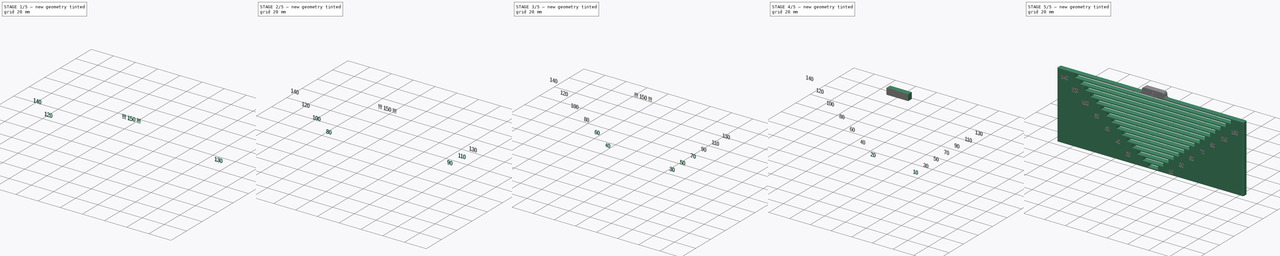
[diagram: build sequence overview — one tinted view per stage of 5, left to right]
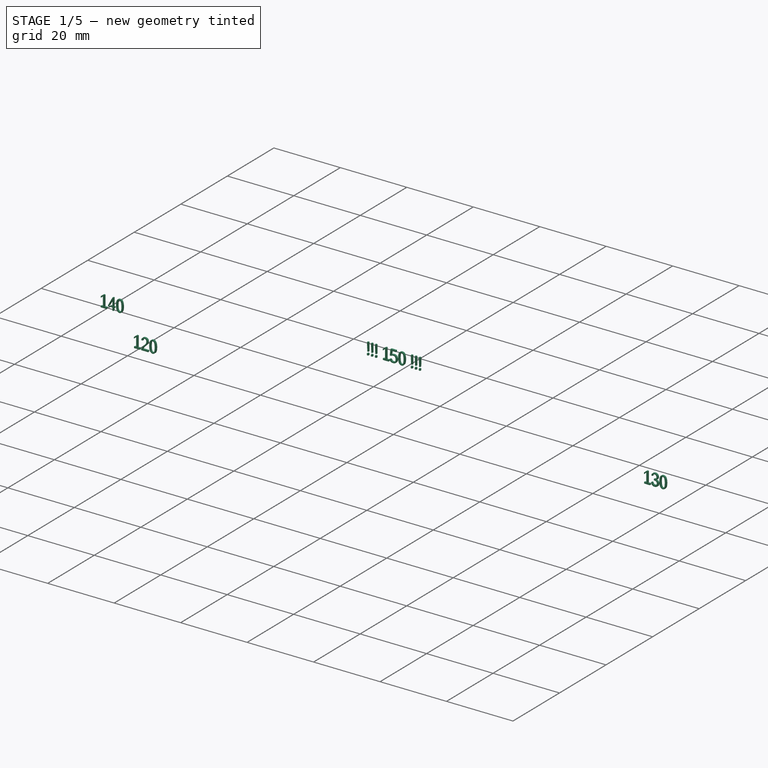
[diagram: stage 1 of 5 — iso view after this stage's code; geometry added in this stage tinted green]
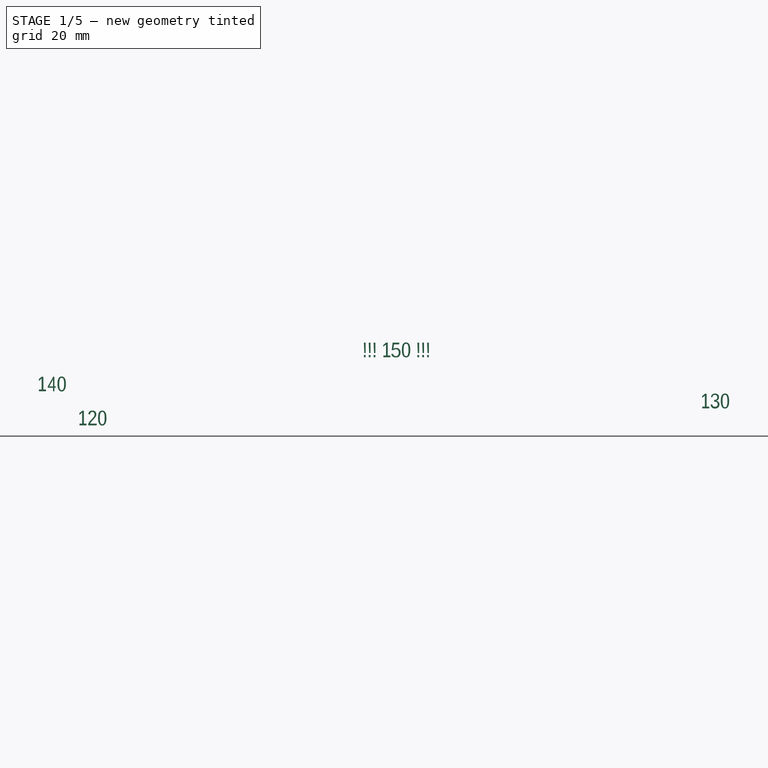
[diagram: stage 1 of 5 — front view after this stage's code; geometry added in this stage tinted green]
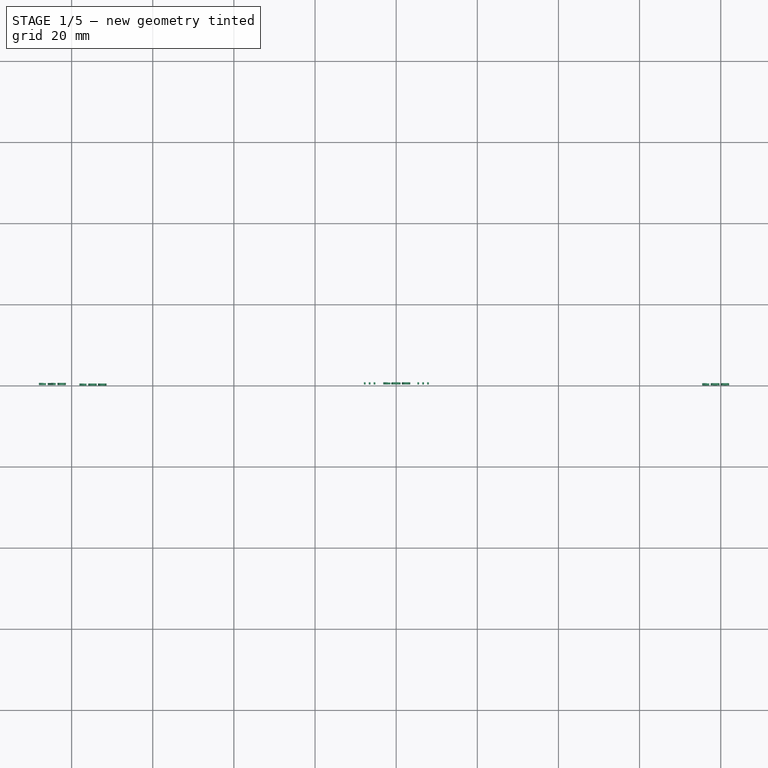
[diagram: stage 1 of 5 — top view after this stage's code; geometry added in this stage tinted green]
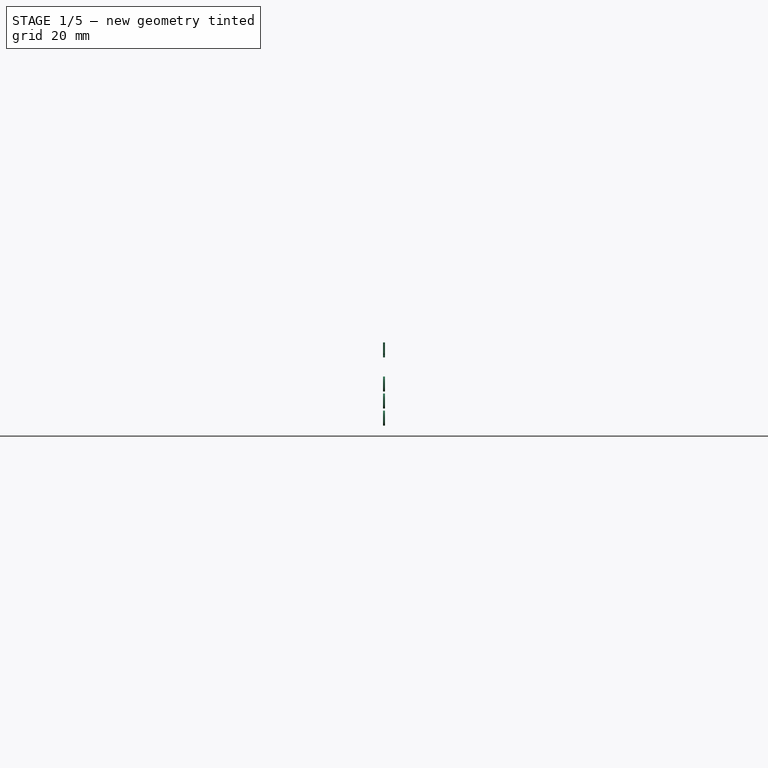
[diagram: stage 1 of 5 — right view after this stage's code; geometry added in this stage tinted green]
FCSTD DOCUMENT  (FreeCAD 0.16R4702 (Git))
Label: bridge
License: CreativeCommons Attribution
LicenseURL: http://creativecommons.org/licenses/by/4.0/
objects: Part::Part2DObjectPython×15, Part::Extrusion×15, Part::MultiFuse×2, Sketcher::SketchObject×1, PartDesign::Pad×1, Part::Box×1, Part::Cut×1, Part::Fillet×1
note: 38 computed .brp shape members not serialized (recipe doc carries the construction recipe); baked Part::Feature solids carry a one-line shape summary decoded from their .brp

FEATURE [Part::Extrusion] Extrude011
  Base = -> ShapeString011
  Dir = (0,0.5,0)
  Solid = true
FEATURE [Part::Extrusion] Extrude012
  Base = -> ShapeString012
  Dir = (0,0.5,0)
  Solid = true
FEATURE [Part::Extrusion] Extrude013
  Base = -> ShapeString013
  Dir = (0,0.5,0)
  Solid = true
FEATURE [Part::Extrusion] Extrude014
  Base = -> ShapeString014
  Dir = (0,0.5,0)
  Solid = true
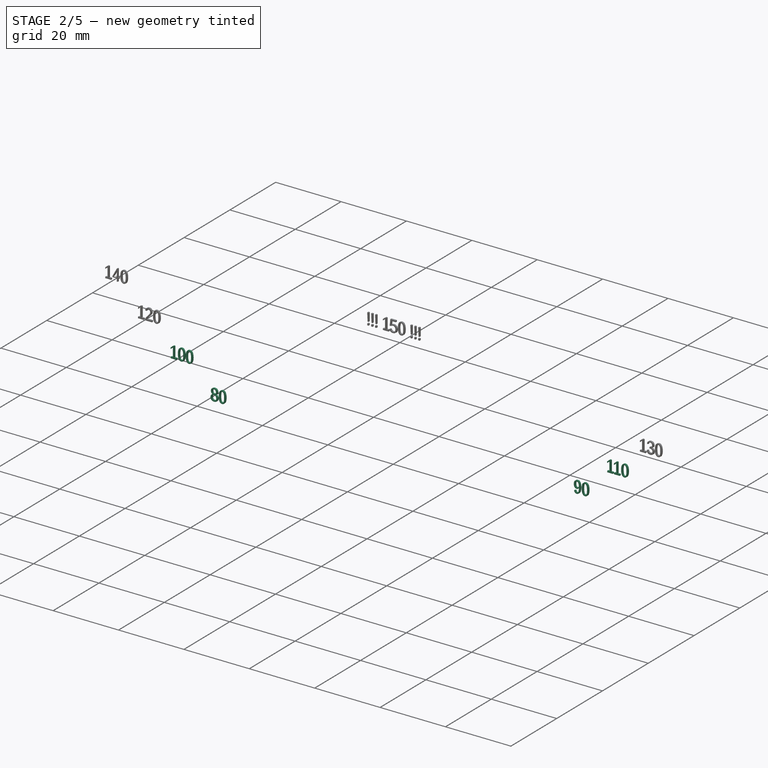
[diagram: stage 2 of 5 — iso view after this stage's code; geometry added in this stage tinted green]
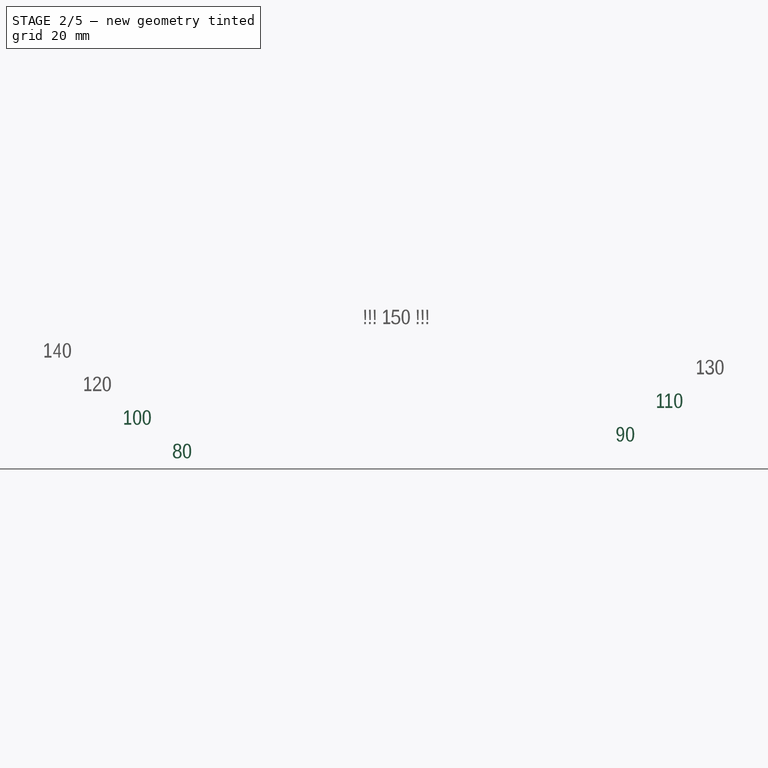
[diagram: stage 2 of 5 — front view after this stage's code; geometry added in this stage tinted green]
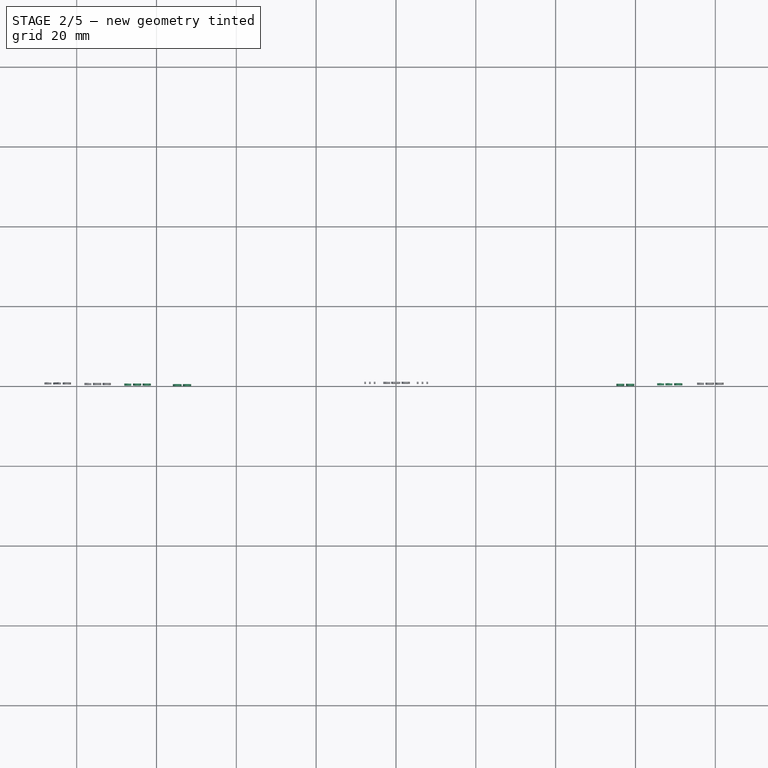
[diagram: stage 2 of 5 — top view after this stage's code; geometry added in this stage tinted green]
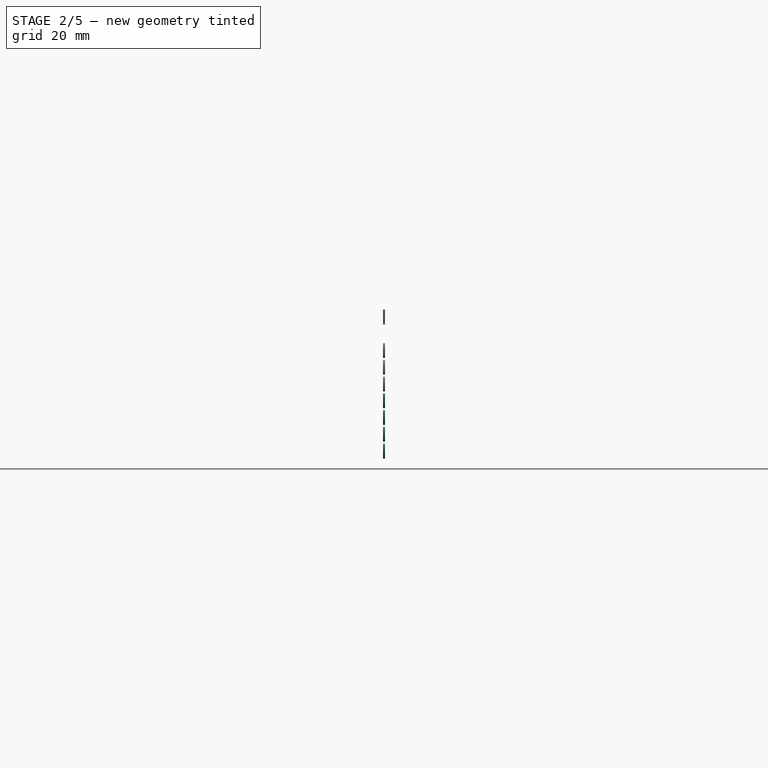
[diagram: stage 2 of 5 — right view after this stage's code; geometry added in this stage tinted green]
FEATURE [Part::Extrusion] Extrude007
  Base = -> ShapeString007
  Dir = (0,0.5,0)
  Solid = true
FEATURE [Part::Extrusion] Extrude008
  Base = -> ShapeString008
  Dir = (0,0.5,0)
  Solid = true
FEATURE [Part::Extrusion] Extrude009
  Base = -> ShapeString009
  Dir = (0,0.5,0)
  Solid = true
FEATURE [Part::Extrusion] Extrude010
  Base = -> ShapeString010
  Dir = (0,0.5,0)
  Solid = true
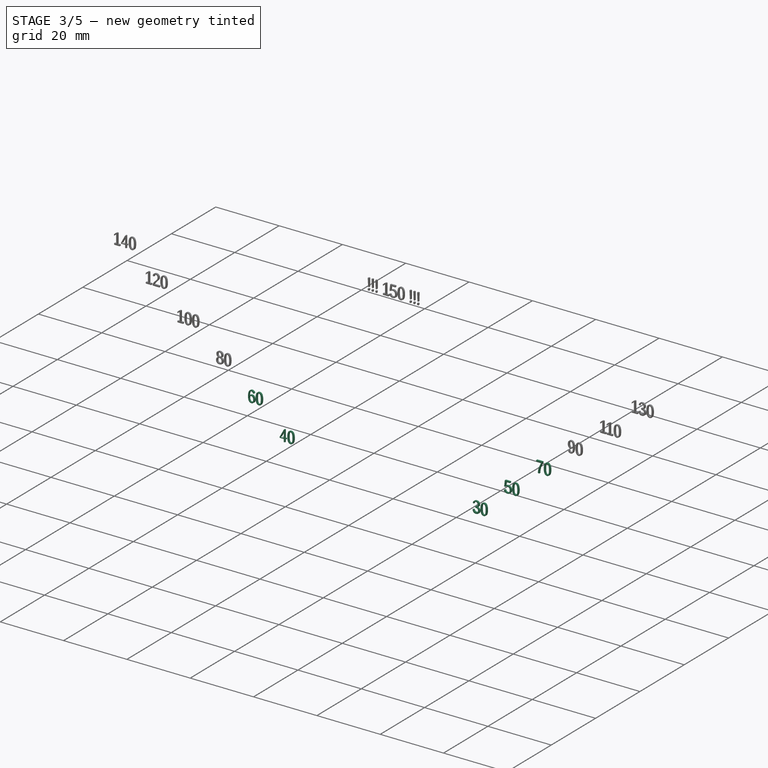
[diagram: stage 3 of 5 — iso view after this stage's code; geometry added in this stage tinted green]
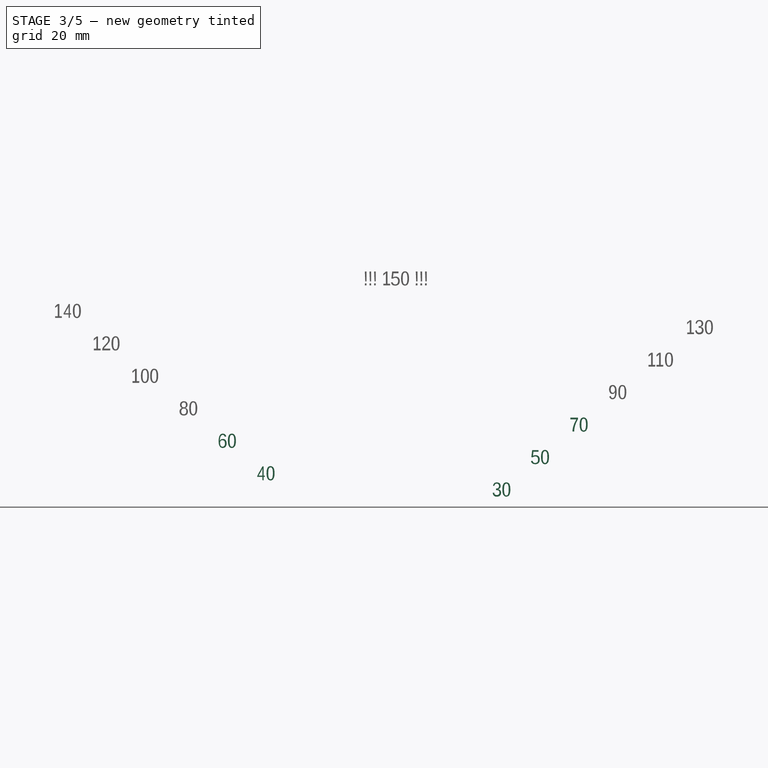
[diagram: stage 3 of 5 — front view after this stage's code; geometry added in this stage tinted green]
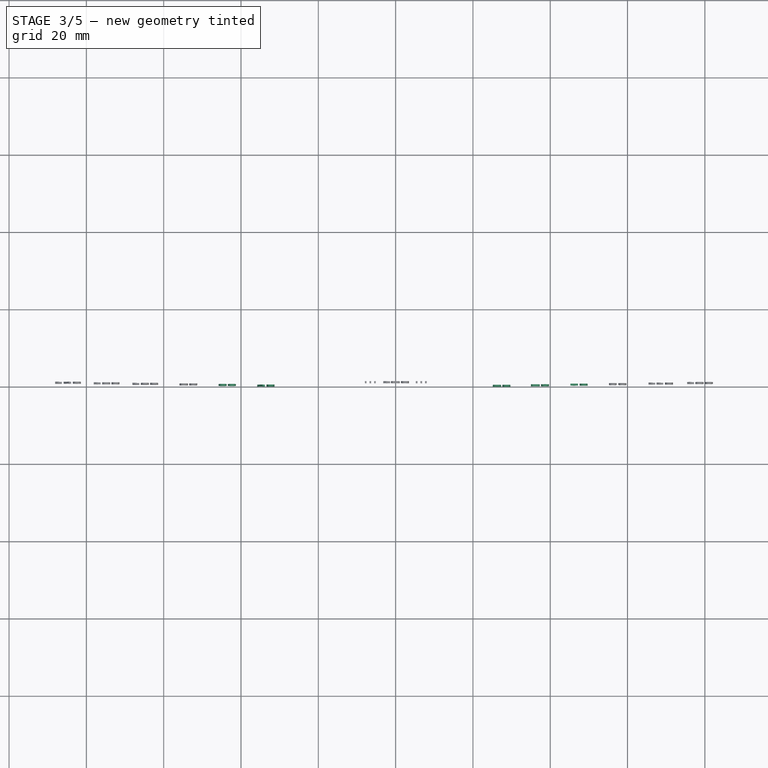
[diagram: stage 3 of 5 — top view after this stage's code; geometry added in this stage tinted green]
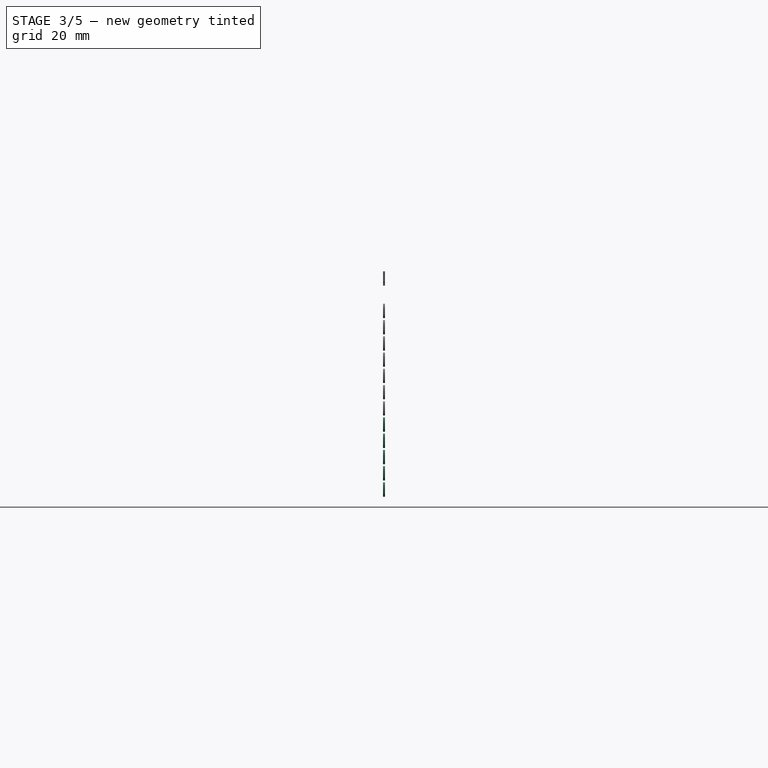
[diagram: stage 3 of 5 — right view after this stage's code; geometry added in this stage tinted green]
FEATURE [Part::Extrusion] Extrude002
  Base = -> ShapeString002
  Dir = (0,0.5,0)
  Solid = true
FEATURE [Part::Extrusion] Extrude003
  Base = -> ShapeString003
  Dir = (0,0.5,0)
  Solid = true
FEATURE [Part::Extrusion] Extrude004
  Base = -> ShapeString004
  Dir = (0,0.5,0)
  Solid = true
FEATURE [Part::Extrusion] Extrude005
  Base = -> ShapeString005
  Dir = (0,0.5,0)
  Solid = true
FEATURE [Part::Extrusion] Extrude006
  Base = -> ShapeString006
  Dir = (0,0.5,0)
  Solid = true
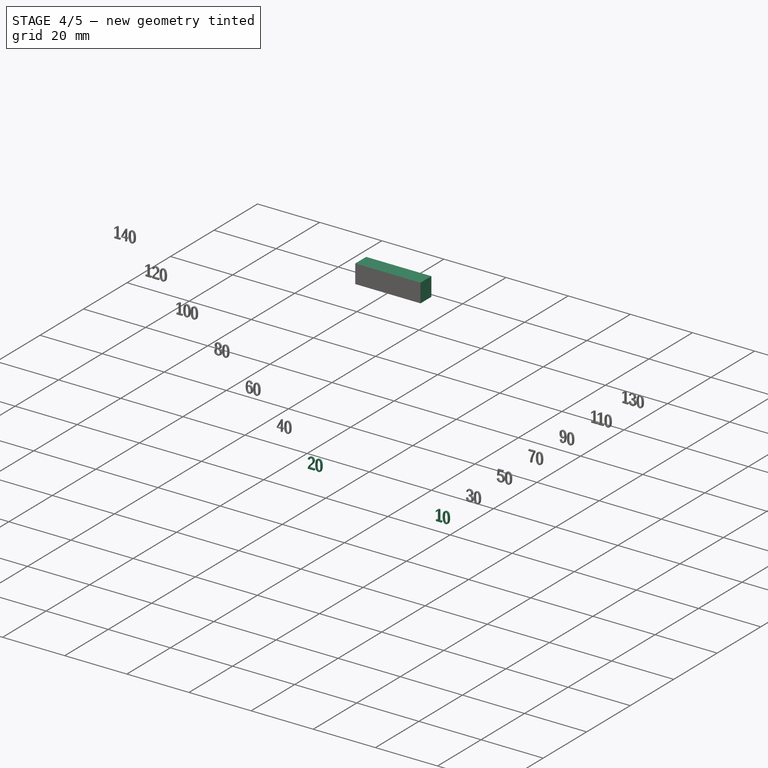
[diagram: stage 4 of 5 — iso view after this stage's code; geometry added in this stage tinted green]
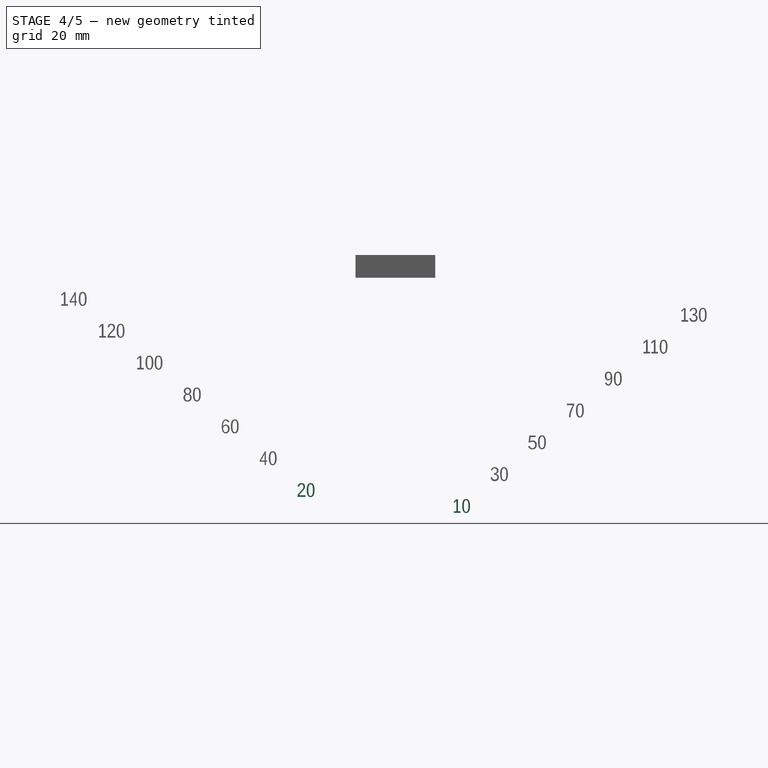
[diagram: stage 4 of 5 — front view after this stage's code; geometry added in this stage tinted green]
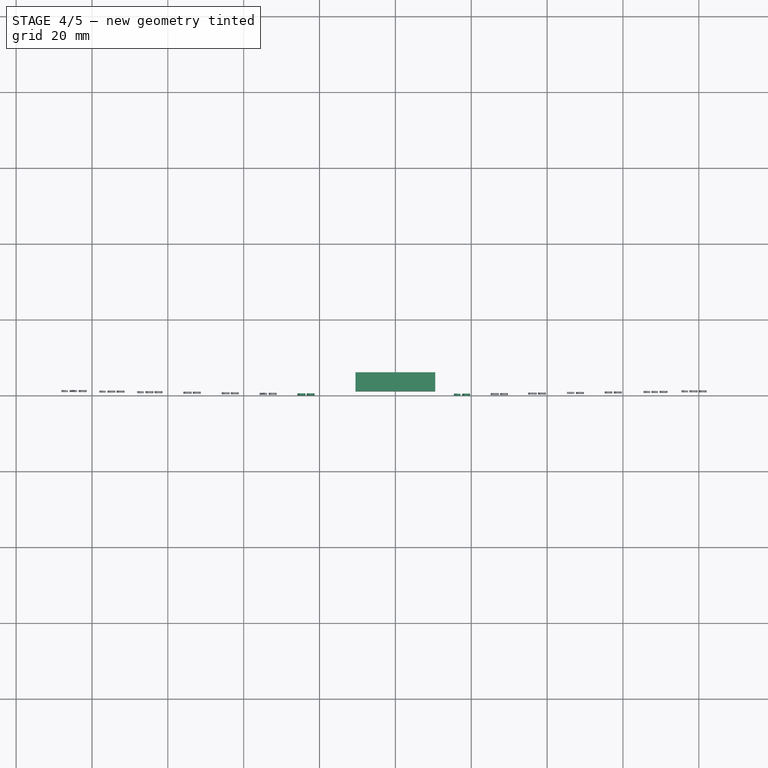
[diagram: stage 4 of 5 — top view after this stage's code; geometry added in this stage tinted green]
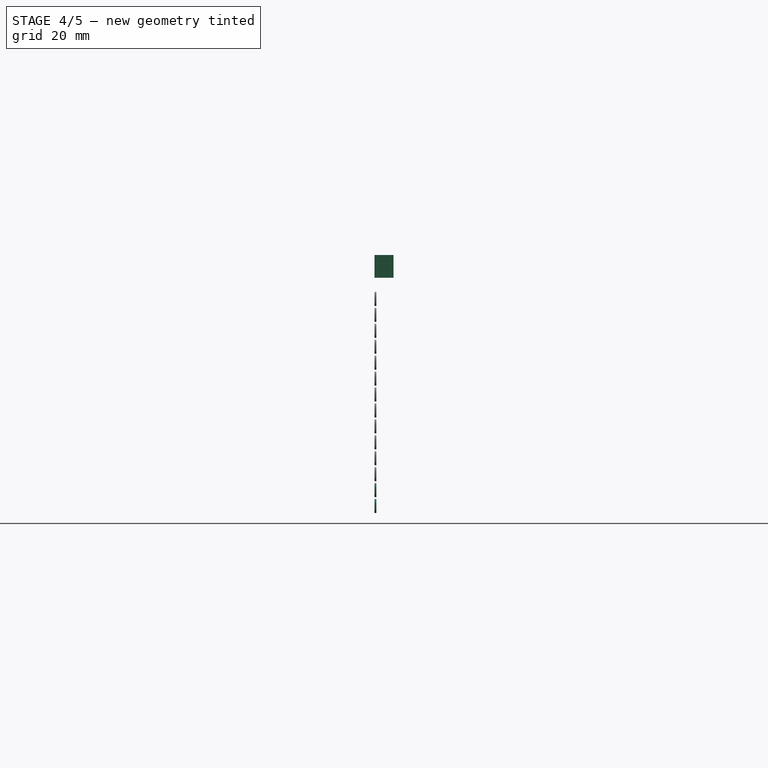
[diagram: stage 4 of 5 — right view after this stage's code; geometry added in this stage tinted green]
FEATURE [Part::Part2DObjectPython] ShapeString  label="ShapeString - 10"  # Draft 2D object (typed FeaturePython)
  FontFile = <userpath>/Desktop/fonts/LiberationSansNarrow-Regular.ttf
  Placement = pos=(15,0,1) rot=(1,0,0;1.5708rad)
  Size = 4
  String = 10
  Tracking = 0
FEATURE [Part::Part2DObjectPython] ShapeString001  label="ShapeString - 20"  # Draft 2D object (typed FeaturePython)
  FontFile = <userpath>/Desktop/fonts/LiberationSansNarrow-Regular.ttf
  Placement = pos=(-26,0,5.2) rot=(1,0,0;1.5708rad)
  Size = 4
  String = 20
  Tracking = 0
FEATURE [Part::Part2DObjectPython] ShapeString002  label="ShapeString - 30"  # Draft 2D object (typed FeaturePython)
  FontFile = <userpath>/Desktop/fonts/LiberationSansNarrow-Regular.ttf
  Placement = pos=(25,0,9.4) rot=(1,0,0;1.5708rad)
  Size = 4
  String = 30
  Tracking = 0
FEATURE [Part::Part2DObjectPython] ShapeString003  label="ShapeString - 40"  # Draft 2D object (typed FeaturePython)
  FontFile = <userpath>/Desktop/fonts/LiberationSansNarrow-Regular.ttf
  Placement = pos=(-36,0,13.6) rot=(1,0,0;1.5708rad)
  Size = 4
  String = 40
  Tracking = 0
FEATURE [Part::Part2DObjectPython] ShapeString004  label="ShapeString - 50"  # Draft 2D object (typed FeaturePython)
  FontFile = <userpath>/Desktop/fonts/LiberationSansNarrow-Regular.ttf
  Placement = pos=(35,0,17.8) rot=(1,0,0;1.5708rad)
  Size = 4
  String = 50
  Tracking = 0
FEATURE [Part::Part2DObjectPython] ShapeString005  label="ShapeString - 60"  # Draft 2D object (typed FeaturePython)
  FontFile = <userpath>/Desktop/fonts/LiberationSansNarrow-Regular.ttf
  Placement = pos=(-46,0,22) rot=(1,0,0;1.5708rad)
  Size = 4
  String = 60
  Tracking = 0
FEATURE [Part::Part2DObjectPython] ShapeString006  label="ShapeString - 70"  # Draft 2D object (typed FeaturePython)
  FontFile = <userpath>/Desktop/fonts/LiberationSansNarrow-Regular.ttf
  Placement = pos=(45,0,26.2) rot=(1,0,0;1.5708rad)
  Size = 4
  String = 70
  Tracking = 0
FEATURE [Part::Part2DObjectPython] ShapeString007  label="ShapeString - 80"  # Draft 2D object (typed FeaturePython)
  FontFile = <userpath>/Desktop/fonts/LiberationSansNarrow-Regular.ttf
  Placement = pos=(-56,0,30.4) rot=(1,0,0;1.5708rad)
  Size = 4
  String = 80
  Tracking = 0
FEATURE [Part::Part2DObjectPython] ShapeString008  label="ShapeString - 90"  # Draft 2D object (typed FeaturePython)
  FontFile = <userpath>/Desktop/fonts/LiberationSansNarrow-Regular.ttf
  Placement = pos=(55,0,34.6) rot=(1,0,0;1.5708rad)
  Size = 4
  String = 90
  Tracking = 0
FEATURE [Part::Part2DObjectPython] ShapeString009  label="ShapeString - 100"  # Draft 2D object (typed FeaturePython)
  FontFile = <userpath>/Desktop/fonts/LiberationSansNarrow-Regular.ttf
  Placement = pos=(-68.5,0,38.8) rot=(1,0,0;1.5708rad)
  Size = 4
  String = 100
  Tracking = 0
FEATURE [Part::Part2DObjectPython] ShapeString010  label="ShapeString - 110"  # Draft 2D object (typed FeaturePython)
  FontFile = <userpath>/Desktop/fonts/LiberationSansNarrow-Regular.ttf
  Placement = pos=(65,0,43) rot=(1,0,0;1.5708rad)
  Size = 4
  String = 110
  Tracking = 0
FEATURE [Part::Part2DObjectPython] ShapeString011  label="ShapeString - 120"  # Draft 2D object (typed FeaturePython)
  FontFile = <userpath>/Desktop/fonts/LiberationSansNarrow-Regular.ttf
  Placement = pos=(-78.5,0,47.2) rot=(1,0,0;1.5708rad)
  Size = 4
  String = 120
  Tracking = 0
FEATURE [Part::Part2DObjectPython] ShapeString012  label="ShapeString - 130"  # Draft 2D object (typed FeaturePython)
  FontFile = <userpath>/Desktop/fonts/LiberationSansNarrow-Regular.ttf
  Placement = pos=(75,0,51.4) rot=(1,0,0;1.5708rad)
  Size = 4
  String = 130
  Tracking = 0
FEATURE [Part::Part2DObjectPython] ShapeString013  label="ShapeString - 140"  # Draft 2D object (typed FeaturePython)
  FontFile = <userpath>/Desktop/fonts/LiberationSansNarrow-Regular.ttf
  Placement = pos=(-88.5,0,55.6) rot=(1,0,0;1.5708rad)
  Size = 4
  String = 140
  Tracking = 0
FEATURE [Part::Part2DObjectPython] ShapeString014  label="ShapeString - 150"  # Draft 2D object (typed FeaturePython)
  FontFile = <userpath>/Desktop/fonts/LiberationSansNarrow-Regular.ttf
  Placement = pos=(-8.4,0,64) rot=(1,0,0;1.5708rad)
  Size = 4
  String = !!! 150 !!!
  Tracking = 0
FEATURE [Part::Extrusion] Extrude
  Base = -> ShapeString
  Dir = (0,0.5,0)
  Solid = true
FEATURE [Part::Extrusion] Extrude001
  Base = -> ShapeString001
  Dir = (0,0.5,0)
  Solid = true
FEATURE [Part::Box] Box  label="Cube"
  Height = 6
  Length = 21
  Placement = pos=(-10.5,0,63) rot=(0,0,1;0rad)
  Width = 5
FEATURE [Part::MultiFuse] Fusion001
  Shapes = -> [Extrude014,Extrude009,Extrude007,Extrude008,Extrude010,Extrude011,Extrude012,Extrude013,Extrude001,Extrude002,Extrude003,Extrude,Extrude005,Extrude004,Extrude006]
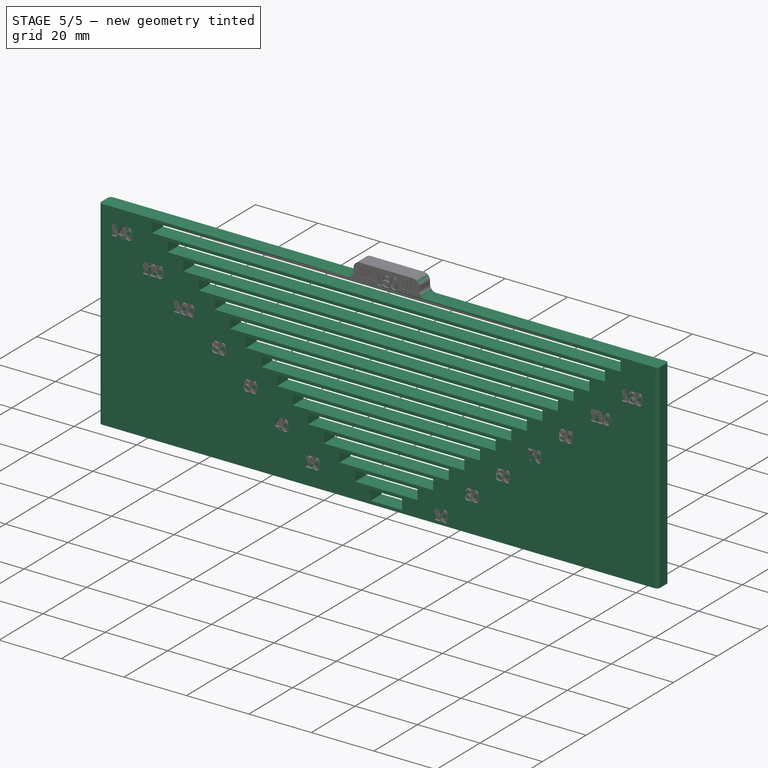
[diagram: stage 5 of 5 — iso view after this stage's code; geometry added in this stage tinted green]
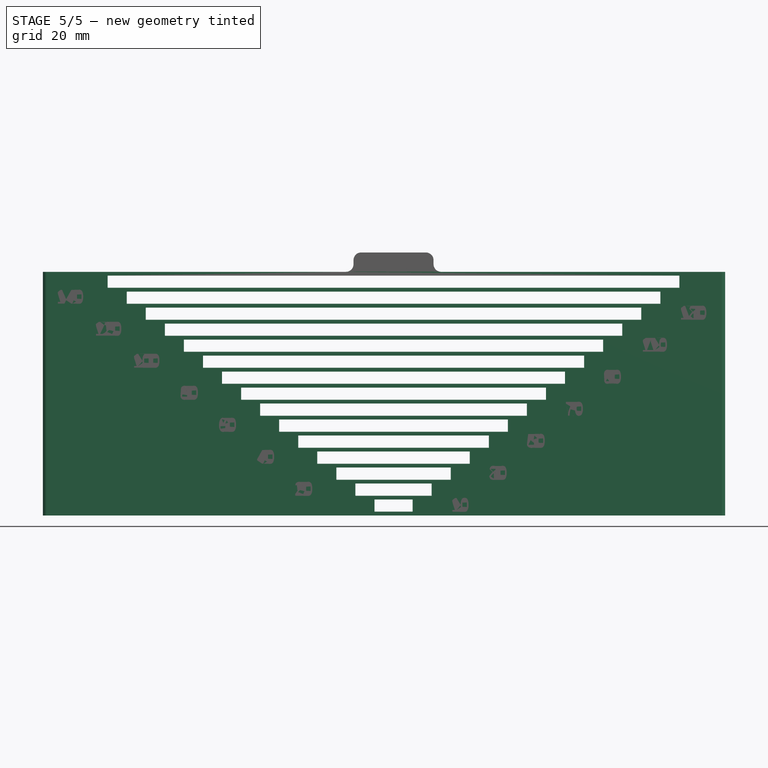
[diagram: stage 5 of 5 — front view after this stage's code; geometry added in this stage tinted green]
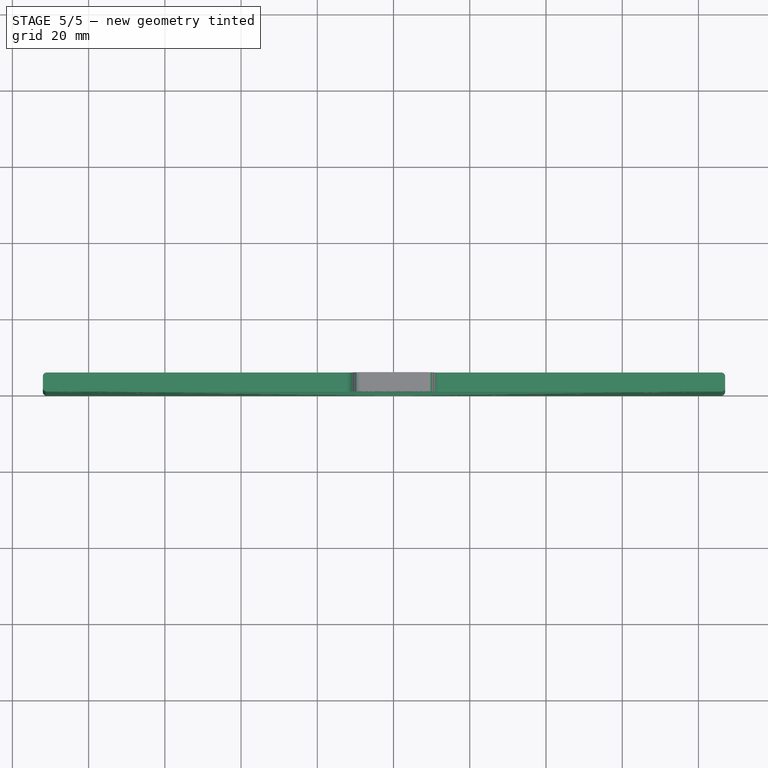
[diagram: stage 5 of 5 — top view after this stage's code; geometry added in this stage tinted green]
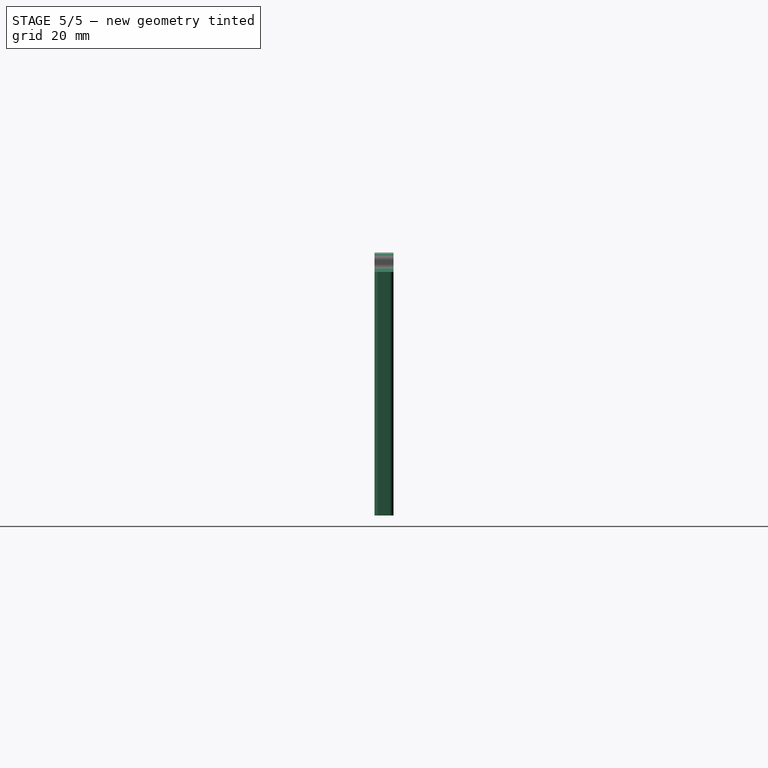
[diagram: stage 5 of 5 — right view after this stage's code; geometry added in this stage tinted green]
FEATURE [Sketcher::SketchObject] Sketch
  Placement = pos=(0,0,0) rot=(-1,0,0;4.71239rad)
  sketch-geometry (66):
    g0: LineSegment [constr] StartX=0 StartY=0 StartZ=0 EndX=-75 EndY=62.9325 EndZ=0
    g1: LineSegment [constr] StartX=0 StartY=0 StartZ=0 EndX=75 EndY=62.9325 EndZ=0
    g2: LineSegment StartX=-75 StartY=62.9325 StartZ=0 EndX=75 EndY=62.9325 EndZ=0
    g3: LineSegment StartX=-10 StartY=8.391 StartZ=0 EndX=10 EndY=8.391 EndZ=0
    g4: LineSegment StartX=-15 StartY=12.5865 StartZ=0 EndX=15 EndY=12.5865 EndZ=0
    g5: LineSegment StartX=-20 StartY=16.782 StartZ=0 EndX=20 EndY=16.782 EndZ=0
    g6: LineSegment StartX=-25 StartY=20.9775 StartZ=0 EndX=25 EndY=20.9775 EndZ=0
    g7: LineSegment StartX=-30 StartY=25.173 StartZ=0 EndX=30 EndY=25.173 EndZ=0
    g8: LineSegment StartX=-35 StartY=29.3685 StartZ=0 EndX=35 EndY=29.3685 EndZ=0
    g9: LineSegment StartX=-40 StartY=33.564 StartZ=0 EndX=40 EndY=33.564 EndZ=0
    g10: LineSegment StartX=-45 StartY=37.7595 StartZ=0 EndX=45 EndY=37.7595 EndZ=0
    g11: LineSegment StartX=-50 StartY=41.955 StartZ=0 EndX=50 EndY=41.955 EndZ=0
    g12: LineSegment StartX=-55 StartY=46.1505 StartZ=0 EndX=55 EndY=46.1505 EndZ=0
    g13: LineSegment StartX=-65 StartY=54.5415 StartZ=0 EndX=65 EndY=54.5415 EndZ=0
    g14: LineSegment StartX=-60 StartY=50.346 StartZ=0 EndX=60 EndY=50.346 EndZ=0
    g15: LineSegment StartX=-70 StartY=58.737 StartZ=0 EndX=70 EndY=58.737 EndZ=0
    g16: LineSegment StartX=-10 StartY=8.391 StartZ=0 EndX=-10 EndY=5.1955 EndZ=0
    g17: LineSegment StartX=-10 StartY=5.1955 StartZ=0 EndX=10 EndY=5.1955 EndZ=0
    g18: LineSegment StartX=10 StartY=5.1955 StartZ=0 EndX=10 EndY=8.391 EndZ=0
    g19: LineSegment StartX=-15 StartY=12.5865 StartZ=0 EndX=-15 EndY=9.391 EndZ=0
    g20: LineSegment StartX=-15 StartY=9.391 StartZ=0 EndX=15 EndY=9.391 EndZ=0
    g21: LineSegment StartX=15 StartY=9.391 StartZ=0 EndX=15 EndY=12.5865 EndZ=0
    g22: LineSegment StartX=-20 StartY=16.782 StartZ=0 EndX=-20 EndY=13.5865 EndZ=0
    g23: LineSegment StartX=-20 StartY=13.5865 StartZ=0 EndX=20 EndY=13.5865 EndZ=0
    g24: LineSegment StartX=20 StartY=13.5865 StartZ=0 EndX=20 EndY=16.782 EndZ=0
    g25: LineSegment StartX=-25 StartY=20.9775 StartZ=0 EndX=-25 EndY=17.782 EndZ=0
    g26: LineSegment StartX=-25 StartY=17.782 StartZ=0 EndX=25 EndY=17.782 EndZ=0
    g27: LineSegment StartX=25 StartY=17.782 StartZ=0 EndX=25 EndY=20.9775 EndZ=0
    g28: LineSegment StartX=-30 StartY=25.173 StartZ=0 EndX=-30 EndY=21.9775 EndZ=0
    g29: LineSegment StartX=-30 StartY=21.9775 StartZ=0 EndX=30 EndY=21.9775 EndZ=0
    g30: LineSegment StartX=30 StartY=21.9775 StartZ=0 EndX=30 EndY=25.173 EndZ=0
    g31: LineSegment StartX=-35 StartY=29.3685 StartZ=0 EndX=-35 EndY=26.173 EndZ=0
    g32: LineSegment StartX=-35 StartY=26.173 StartZ=0 EndX=35 EndY=26.173 EndZ=0
    g33: LineSegment StartX=35 StartY=26.173 StartZ=0 EndX=35 EndY=29.3685 EndZ=0
    g34: LineSegment StartX=-40 StartY=33.564 StartZ=0 EndX=-40 EndY=30.3685 EndZ=0
    g35: LineSegment StartX=-40 StartY=30.3685 StartZ=0 EndX=40 EndY=30.3685 EndZ=0
    g36: LineSegment StartX=40 StartY=30.3685 StartZ=0 EndX=40 EndY=33.564 EndZ=0
    g37: LineSegment StartX=-45 StartY=37.7595 StartZ=0 EndX=-45 EndY=34.564 EndZ=0
    g38: LineSegment StartX=-45 StartY=34.564 StartZ=0 EndX=45 EndY=34.564 EndZ=0
    g39: LineSegment StartX=45 StartY=34.564 StartZ=0 EndX=45 EndY=37.7595 EndZ=0
    g40: LineSegment StartX=-50 StartY=41.955 StartZ=0 EndX=-50 EndY=38.7595 EndZ=0
    g41: LineSegment StartX=-50 StartY=38.7595 StartZ=0 EndX=50 EndY=38.7595 EndZ=0
    g42: LineSegment StartX=50 StartY=38.7595 StartZ=0 EndX=50 EndY=41.955 EndZ=0
    g43: LineSegment StartX=-55 StartY=46.1505 StartZ=0 EndX=-55 EndY=42.955 EndZ=0
    g44: LineSegment StartX=-55 StartY=42.955 StartZ=0 EndX=55 EndY=42.955 EndZ=0
    g45: LineSegment StartX=55 StartY=42.955 StartZ=0 EndX=55 EndY=46.1505 EndZ=0
    g46: LineSegment StartX=-60 StartY=50.346 StartZ=0 EndX=-60 EndY=47.1505 EndZ=0
    g47: LineSegment StartX=-60 StartY=47.1505 StartZ=0 EndX=60 EndY=47.1505 EndZ=0
    g48: LineSegment StartX=60 StartY=47.1505 StartZ=0 EndX=60 EndY=50.346 EndZ=0
    g49: LineSegment StartX=-65 StartY=54.5415 StartZ=0 EndX=-65 EndY=51.346 EndZ=0
    g50: LineSegment StartX=-65 StartY=51.346 StartZ=0 EndX=65 EndY=51.346 EndZ=0
    g51: LineSegment StartX=65 StartY=51.346 StartZ=0 EndX=65 EndY=54.5415 EndZ=0
    g52: LineSegment StartX=-70 StartY=58.737 StartZ=0 EndX=-70 EndY=55.5415 EndZ=0
    g53: LineSegment StartX=-70 StartY=55.5415 StartZ=0 EndX=70 EndY=55.5415 EndZ=0
    g54: LineSegment StartX=70 StartY=55.5415 StartZ=0 EndX=70 EndY=58.737 EndZ=0
    g55: LineSegment StartX=-75 StartY=62.9325 StartZ=0 EndX=-75 EndY=59.737 EndZ=0
    g56: LineSegment StartX=-75 StartY=59.737 StartZ=0 EndX=75 EndY=59.737 EndZ=0
    g57: LineSegment StartX=75 StartY=59.737 StartZ=0 EndX=75 EndY=62.9325 EndZ=0
    g58: LineSegment StartX=-5 StartY=4.1955 StartZ=0 EndX=5 EndY=4.1955 EndZ=0
    g59: LineSegment StartX=-5 StartY=4.1955 StartZ=0 EndX=-5 EndY=1 EndZ=0
    g60: LineSegment StartX=-5 StartY=1 StartZ=0 EndX=5 EndY=1 EndZ=0
    g61: LineSegment StartX=5 StartY=1 StartZ=0 EndX=5 EndY=4.1955 EndZ=0
    g62: LineSegment StartX=-92 StartY=63.9325 StartZ=0 EndX=87 EndY=63.9325 EndZ=0
    g63: LineSegment StartX=87 StartY=63.9325 StartZ=0 EndX=87 EndY=0 EndZ=0
    g64: LineSegment StartX=87 StartY=0 StartZ=0 EndX=-92 EndY=0 EndZ=0
    g65: LineSegment StartX=-92 StartY=0 StartZ=0 EndX=-92 EndY=63.9325 EndZ=0
  constraints (196):
    c: Coincident(g-1,g0)
    c: Coincident(g1,g-1)
    c: Coincident(g2,g0)
    c: Coincident(g2,g1)
    c: Horizontal(g2)
    c: PointOnObject(g3,g0)
    c: PointOnObject(g3,g1)
    c: Horizontal(g3)
    c: PointOnObject(g4,g0)
    c: PointOnObject(g4,g1)
    c: Horizontal(g4)
    c: PointOnObject(g5,g0)
    c: Horizontal(g5)
    c: PointOnObject(g6,g0)
    c: PointOnObject(g6,g1)
    c: Horizontal(g6)
    c: PointOnObject(g5,g1)
    c: PointOnObject(g7,g0)
    c: PointOnObject(g7,g1)
    c: Horizontal(g7)
    c: PointOnObject(g8,g0)
    c: PointOnObject(g8,g1)
    c: Horizontal(g8)
    c: PointOnObject(g9,g0)
    c: PointOnObject(g9,g1)
    c: Horizontal(g9)
    c: PointOnObject(g10,g0)
    c: PointOnObject(g10,g1)
    c: Horizontal(g10)
    c: DistanceX(g3) = 20
    c: DistanceX(g4) = 30
    c: DistanceX(g5) = 40
    c: DistanceX(g6) = 50
    c: DistanceX(g7) = 60
    c: DistanceX(g8) = 70
    c: DistanceX(g9) = 80
    c: DistanceX(g10) = 90
    c: PointOnObject(g11,g0)
    c: Horizontal(g11)
    c: PointOnObject(g11,g1)
    c: PointOnObject(g12,g0)
    c: PointOnObject(g12,g1)
    c: Horizontal(g12)
    c: PointOnObject(g13,g0)
    c: PointOnObject(g13,g1)
    c: Horizontal(g13)
    c: PointOnObject(g14,g0)
    c: PointOnObject(g14,g1)
    c: Horizontal(g14)
    c: DistanceX(g11) = 100
    c: DistanceX(g12) = 110
    c: DistanceX(g14) = 120
    c: DistanceX(g13) = 130
    c: DistanceX(g2) = 150
    c: PointOnObject(g15,g0)
    c: PointOnObject(g15,g1)
    c: Horizontal(g15)
    c: DistanceX(g15) = 140
    c: Coincident(g3,g16)
    c: Vertical(g16)
    c: Coincident(g16,g17)
    c: Horizontal(g17)
    c: Coincident(g17,g18)
    c: Coincident(g18,g3)
    c: Vertical(g18)
    c: Coincident(g4,g19)
    c: Vertical(g19)
    c: Coincident(g19,g20)
    c: Horizontal(g20)
    c: Coincident(g20,g21)
    c: Coincident(g21,g4)
    c: Vertical(g21)
    c: Coincident(g5,g22)
    c: Vertical(g22)
    c: Coincident(g22,g23)
    c: Horizontal(g23)
    c: Coincident(g23,g24)
    c: Coincident(g24,g5)
    c: Vertical(g24)
    c: Coincident(g6,g25)
    c: Vertical(g25)
    c: Coincident(g25,g26)
    c: Horizontal(g26)
    c: Coincident(g26,g27)
    c: Coincident(g27,g6)
    c: Vertical(g27)
    c: Coincident(g7,g28)
    c: Vertical(g28)
    c: Coincident(g28,g29)
    c: Horizontal(g29)
    c: Coincident(g29,g30)
    c: Coincident(g30,g7)
    c: Vertical(g30)
    c: Coincident(g8,g31)
    c: Vertical(g31)
    c: Coincident(g31,g32)
    c: Horizontal(g32)
    c: Coincident(g32,g33)
    c: Coincident(g33,g8)
    c: Vertical(g33)
    c: Coincident(g9,g34)
    c: Vertical(g34)
    c: Coincident(g34,g35)
    c: Horizontal(g35)
    c: Coincident(g35,g36)
    c: Coincident(g36,g9)
    c: Vertical(g36)
    c: Coincident(g10,g37)
    c: Vertical(g37)
    c: Coincident(g37,g38)
    c: Horizontal(g38)
    c: Coincident(g38,g39)
    c: Coincident(g39,g10)
    c: Vertical(g39)
    c: Coincident(g11,g40)
    c: Vertical(g40)
    c: Coincident(g40,g41)
    c: Horizontal(g41)
    c: Coincident(g41,g42)
    c: Coincident(g42,g11)
    c: Vertical(g42)
    c: Coincident(g12,g43)
    c: Vertical(g43)
    c: Coincident(g43,g44)
    c: Horizontal(g44)
    c: Coincident(g44,g45)
    c: Coincident(g45,g12)
    c: Vertical(g45)
    c: Coincident(g14,g46)
    c: Vertical(g46)
    c: Coincident(g46,g47)
    c: Horizontal(g47)
    c: Coincident(g47,g48)
    c: Coincident(g48,g14)
    c: Vertical(g48)
    c: Coincident(g13,g49)
    c: Vertical(g49)
    c: Coincident(g49,g50)
    c: Horizontal(g50)
    c: Coincident(g50,g51)
    c: Vertical(g51)
    c: Coincident(g13,g51)
    c: Coincident(g15,g52)
    c: Vertical(g52)
    c: Coincident(g52,g53)
    c: Horizontal(g53)
    c: Coincident(g53,g54)
    c: Coincident(g54,g15)
    c: Vertical(g54)
    c: Coincident(g0,g55)
    c: Vertical(g55)
    c: Coincident(g55,g56)
    c: Horizontal(g56)
    c: Coincident(g56,g57)
    c: Coincident(g57,g1)
    c: Vertical(g57)
    c: Equal(g18,g21)
    c: Equal(g21,g24)
    c: Equal(g24,g27)
    c: Equal(g27,g30)
    c: Equal(g30,g33)
    c: Equal(g33,g36)
    c: Equal(g36,g39)
    c: Equal(g39,g42)
    c: Equal(g42,g45)
    c: Equal(g45,g48)
    c: Equal(g48,g51)
    c: Equal(g51,g54)
    c: Equal(g54,g57)
    c: Angle(g1) = 0.698132
    c: Angle(g0) = 2.44346
    c: PointOnObject(g58,g0)
    c: PointOnObject(g58,g1)
    c: Horizontal(g58)
    c: Coincident(g58,g59)
    c: Vertical(g59)
    c: Coincident(g59,g60)
    c: Horizontal(g60)
    c: Coincident(g60,g61)
    c: Coincident(g61,g58)
    c: Vertical(g61)
    c: DistanceX(g58) = 10
    c: Equal(g61,g18)
    c: Coincident(g62,g63)
    c: Coincident(g63,g64)
    c: Coincident(g64,g65)
    c: Coincident(g65,g62)
    c: Horizontal(g62)
    c: Horizontal(g64)
    c: Vertical(g63)
    c: Vertical(g65)
    c: PointOnObject(g63,g-1)
    c: DistanceY(g1,g62) = 1
    c: DistanceX(g1,g62) = 12
    c: DistanceX(g62,g0) = 17
    c: DistanceY(g60,g63) = -1
FEATURE [PartDesign::Pad] Pad
  Length = 5
  Length2 = 100
  Placement = pos=(0,0,0) rot=(-1,0,0;4.71239rad)
  Reversed = true
  Sketch = -> Sketch
  Type = 0
FEATURE [Part::MultiFuse] Fusion
  Shapes = -> [Box,Pad]
FEATURE [Part::Cut] Cut
  Base = -> Fusion
  Tool = -> Fusion001
FEATURE [Part::Fillet] Fillet
  Base = -> Cut
  Edges = 8 edges: [Edge1 r=2,Edge3 r=2,Edge7 r=2,Edge10 r=1,Edge12 r=1,Edge75 r=2,Edge77 r=1,Edge80 r=1]
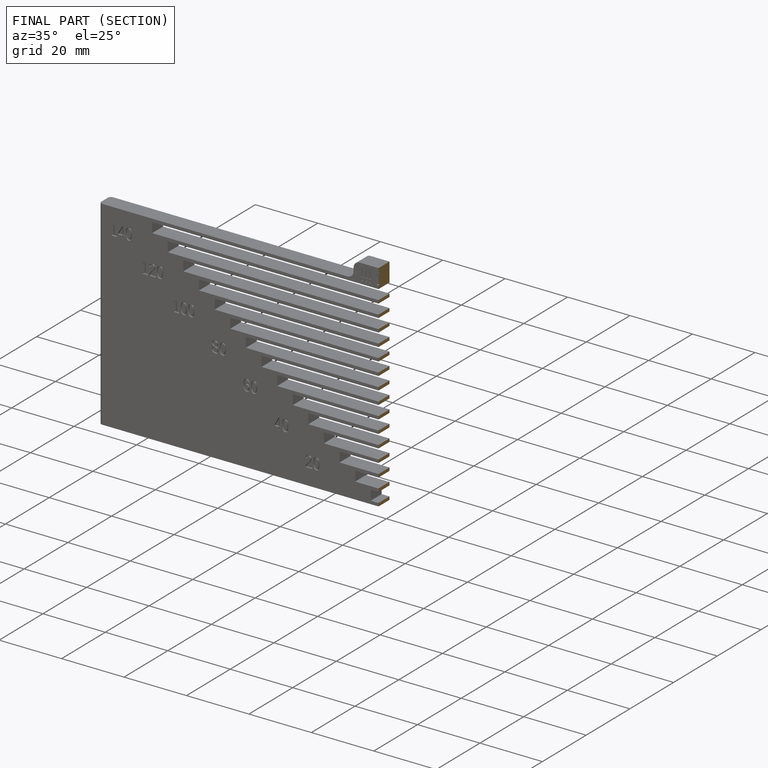
[diagram: finished part — half-section view (interior)]
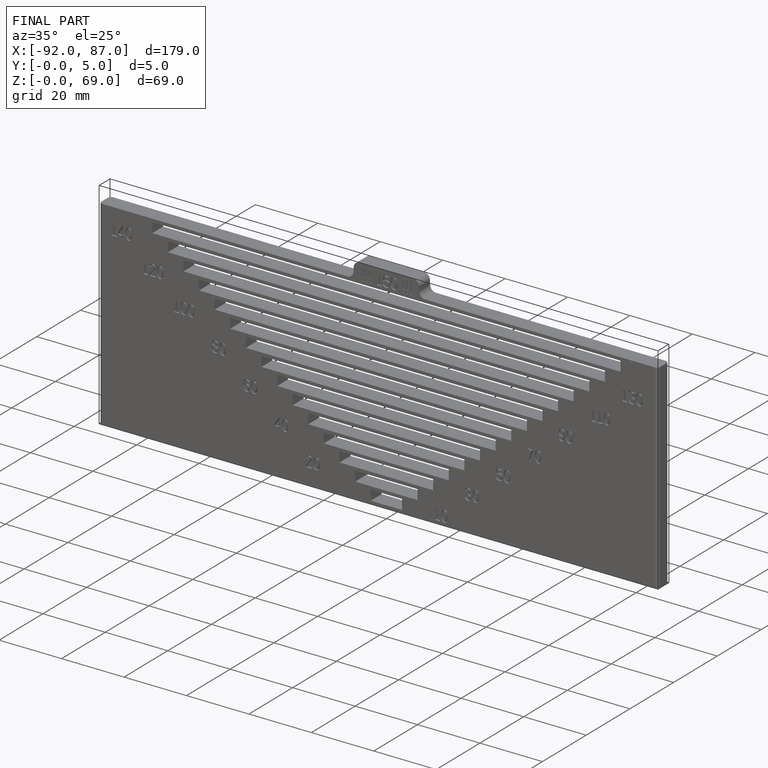
[diagram: finished part — iso view with bounding-box wireframe]
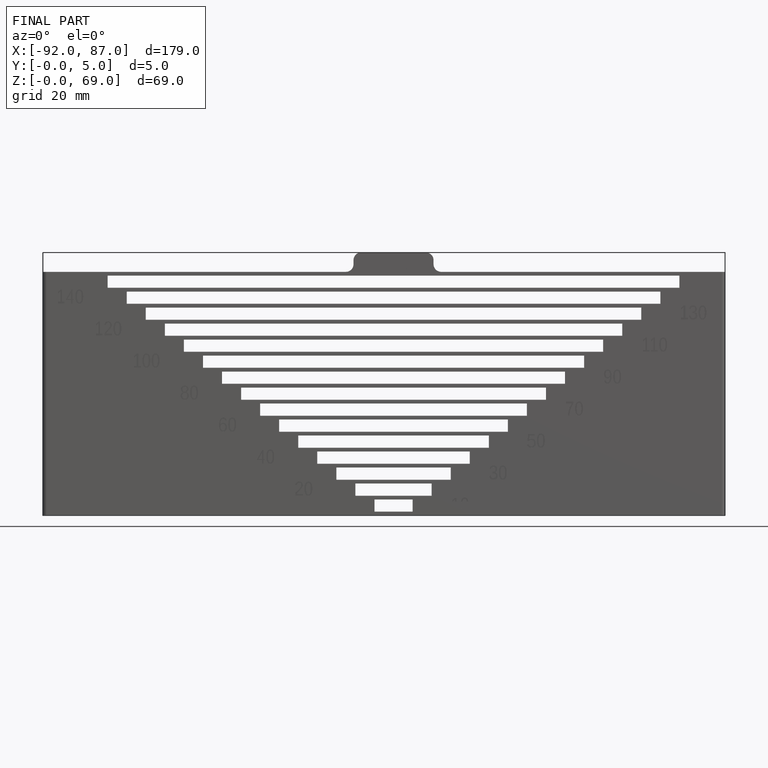
[diagram: finished part — front view with bounding-box wireframe]
